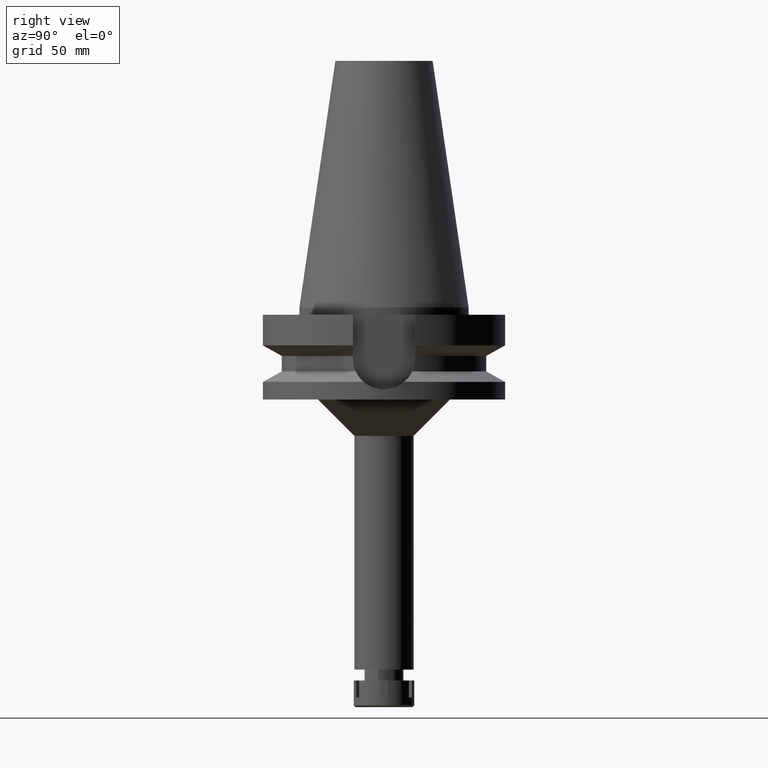
[diagram: clean part render]
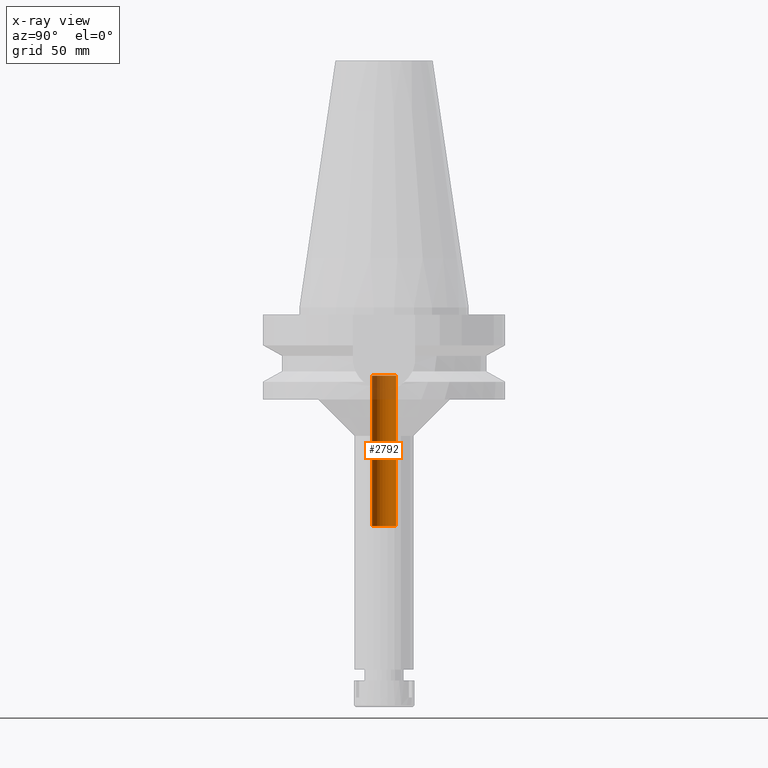
[diagram: x-ray — body ghosted, one internal face saturated and labeled with its STEP entity id]
A machine part, right view, then the same camera in x-ray: the body is ghosted and one INTERNAL B-rep face — a face not visible from any outside direction — is saturated and labeled: STEP entity #2792.
In plain terms, the highlighted cylindrical surface (edge-blend (fillet) strip) has radius 5 mm, axis along (0, 0, -1).
Its self-contained STEP definition (entity closure, byte-faithful):
#259 = EDGE_LOOP ( 'NONE', ( #1392, #1895, #531, #482 ) ) ;
#418 = VECTOR ( 'NONE', #1507, 1000.000000000000000 ) ;
#482 = ORIENTED_EDGE ( 'NONE', *, *, #2489, .T. ) ;
#531 = ORIENTED_EDGE ( 'NONE', *, *, #1365, .T. ) ;
#548 = VERTEX_POINT ( 'NONE', #3540 ) ;
#586 = VERTEX_POINT ( 'NONE', #3526 ) ;
#587 = VECTOR ( 'NONE', #2191, 1000.000000000000000 ) ;
#795 = DIRECTION ( 'NONE',  ( 0.0000000000000000000, -1.000000000000000000, 0.0000000000000000000 ) ) ;
#835 = CARTESIAN_POINT ( 'NONE',  ( 0.0000000000000000000, 2.631031183287999807E-14, -28.19999999999999929 ) ) ;
#1113 = DIRECTION ( 'NONE',  ( 0.0000000000000000000, 0.0000000000000000000, -1.000000000000000000 ) ) ;
#1286 = CIRCLE ( 'NONE', #2420, 5.000000000000000000 ) ;
#1349 = CARTESIAN_POINT ( 'NONE',  ( 0.0000000000000000000, 2.631031183287999807E-14, -90.20000000000000284 ) ) ;
#1365 = EDGE_CURVE ( 'NONE', #586, #548, #1286, .T. ) ;
#1392 = ORIENTED_EDGE ( 'NONE', *, *, #1515, .T. ) ;
#1446 = FACE_OUTER_BOUND ( 'NONE', #259, .T. ) ;
#1507 = DIRECTION ( 'NONE',  ( 0.0000000000000000000, 0.0000000000000000000, 1.000000000000000000 ) ) ;
#1515 = EDGE_CURVE ( 'NONE', #2942, #3643, #3369, .T. ) ;
#1858 = LINE ( 'NONE', #3547, #418 ) ;
#1895 = ORIENTED_EDGE ( 'NONE', *, *, #2650, .F. ) ;
#1920 = AXIS2_PLACEMENT_3D ( 'NONE', #2301, #1113, #3447 ) ;
#1961 = DIRECTION ( 'NONE',  ( 0.0000000000000000000, 1.000000000000000000, 0.0000000000000000000 ) ) ;
#2093 = CARTESIAN_POINT ( 'NONE',  ( 0.0000000000000000000, 5.000000000000000000, -28.19999999999999929 ) ) ;
#2170 = DIRECTION ( 'NONE',  ( 0.0000000000000000000, 0.0000000000000000000, -1.000000000000000000 ) ) ;
#2191 = DIRECTION ( 'NONE',  ( 0.0000000000000000000, 0.0000000000000000000, 1.000000000000000000 ) ) ;
#2278 = CYLINDRICAL_SURFACE ( 'NONE', #1920, 5.000000000000000000 ) ;
#2301 = CARTESIAN_POINT ( 'NONE',  ( 0.0000000000000000000, 2.631031183287999807E-14, 114.8400000000000034 ) ) ;
#2420 = AXIS2_PLACEMENT_3D ( 'NONE', #1349, #2170, #795 ) ;
#2489 = EDGE_CURVE ( 'NONE', #548, #2942, #1858, .T. ) ;
#2650 = EDGE_CURVE ( 'NONE', #586, #3643, #3321, .T. ) ;
#2777 = CARTESIAN_POINT ( 'NONE',  ( 0.0000000000000000000, -5.000000000000000000, -90.20000000000000284 ) ) ;
#2792 = ADVANCED_FACE ( 'NONE', ( #1446 ), #2278, .F. ) ;
#2942 = VERTEX_POINT ( 'NONE', #2093 ) ;
#3086 = CARTESIAN_POINT ( 'NONE',  ( 0.0000000000000000000, -5.000000000000000000, -28.19999999999999929 ) ) ;
#3321 = LINE ( 'NONE', #2777, #587 ) ;
#3369 = CIRCLE ( 'NONE', #3433, 5.000000000000000000 ) ;
#3385 = DIRECTION ( 'NONE',  ( 0.0000000000000000000, 0.0000000000000000000, 1.000000000000000000 ) ) ;
#3433 = AXIS2_PLACEMENT_3D ( 'NONE', #835, #3385, #1961 ) ;
#3447 = DIRECTION ( 'NONE',  ( 0.0000000000000000000, -1.000000000000000000, 0.0000000000000000000 ) ) ;
#3526 = CARTESIAN_POINT ( 'NONE',  ( 0.0000000000000000000, -5.000000000000000000, -90.20000000000000284 ) ) ;
#3540 = CARTESIAN_POINT ( 'NONE',  ( 0.0000000000000000000, 5.000000000000000000, -90.20000000000000284 ) ) ;
#3547 = CARTESIAN_POINT ( 'NONE',  ( 0.0000000000000000000, 5.000000000000000000, -90.20000000000000284 ) ) ;
#3643 = VERTEX_POINT ( 'NONE', #3086 ) ;